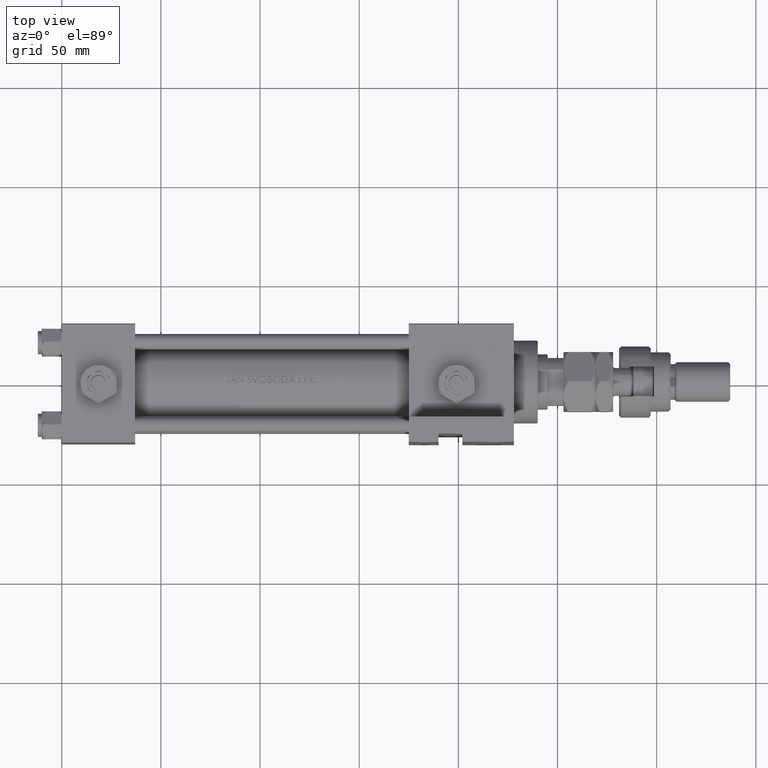
[diagram: clean part render]
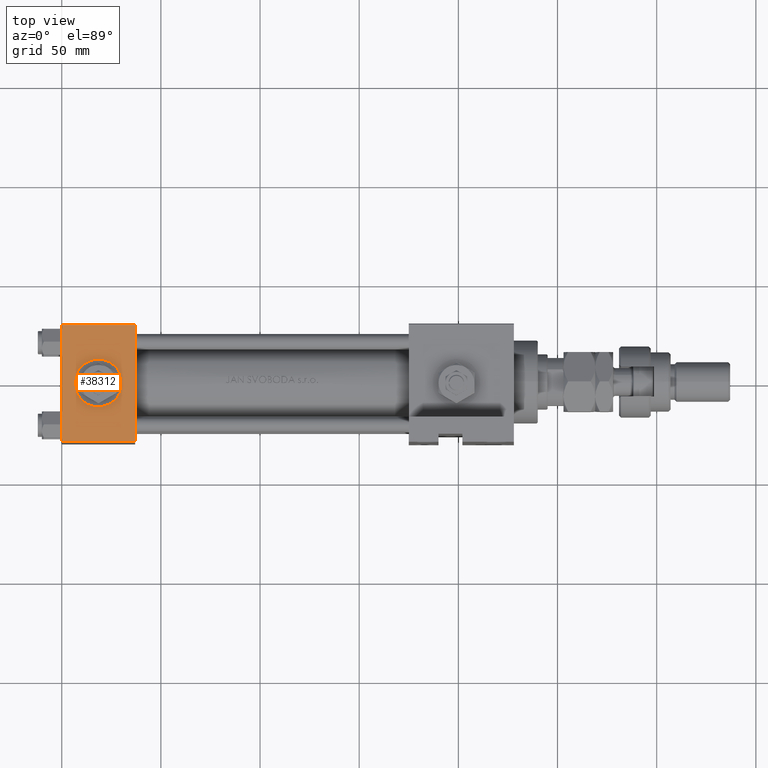
[diagram: same view with one face highlighted and labeled with its STEP entity id]
A machine part, top view. The second image highlights one B-rep face of the part: STEP entity #38312.
In plain terms, the highlighted planar face has unit normal (0, 0, -1).
Its self-contained STEP definition (entity closure, byte-faithful):
#76 = VERTEX_POINT ( 'NONE', #5356 ) ;
#706 = EDGE_LOOP ( 'NONE', ( #42004, #42087 ) ) ;
#775 = CARTESIAN_POINT ( 'NONE',  ( 0.000000000000000000, -30.00000000000000000, -29.50000000000001776 ) ) ;
#1599 = VERTEX_POINT ( 'NONE', #775 ) ;
#1901 = EDGE_CURVE ( 'NONE', #15721, #19459, #21573, .T. ) ;
#2802 = CARTESIAN_POINT ( 'NONE',  ( 37.00000000000000000, -30.00000000000000000, 29.49999999999999289 ) ) ;
#4775 = VECTOR ( 'NONE', #41413, 1000.000000000000000 ) ;
#5356 = CARTESIAN_POINT ( 'NONE',  ( 18.50000000000000000, -30.00000000000000000, -12.00000000000000178 ) ) ;
#5712 = FACE_OUTER_BOUND ( 'NONE', #18917, .T. ) ;
#5971 = ORIENTED_EDGE ( 'NONE', *, *, #18132, .T. ) ;
#6537 = AXIS2_PLACEMENT_3D ( 'NONE', #30926, #13850, #42857 ) ;
#13450 = CARTESIAN_POINT ( 'NONE',  ( 37.00000000000000000, -30.00000000000000000, 29.99999999999999289 ) ) ;
#13850 = DIRECTION ( 'NONE',  ( -0.000000000000000000, 1.000000000000000000, 0.000000000000000000 ) ) ;
#15721 = VERTEX_POINT ( 'NONE', #40972 ) ;
#17205 = VECTOR ( 'NONE', #32340, 1000.000000000000000 ) ;
#17362 = DIRECTION ( 'NONE',  ( 0.000000000000000000, 0.000000000000000000, -1.000000000000000000 ) ) ;
#18132 = EDGE_CURVE ( 'NONE', #15721, #49796, #48611, .T. ) ;
#18917 = EDGE_LOOP ( 'NONE', ( #37620, #39224, #24002, #5971 ) ) ;
#19459 = VERTEX_POINT ( 'NONE', #20326 ) ;
#19681 = EDGE_CURVE ( 'NONE', #49796, #1599, #28157, .T. ) ;
#20326 = CARTESIAN_POINT ( 'NONE',  ( 37.00000000000000000, -30.00000000000000000, -29.50000000000001776 ) ) ;
#21311 = EDGE_CURVE ( 'NONE', #1599, #19459, #36595, .T. ) ;
#21573 = LINE ( 'NONE', #13450, #17205 ) ;
#22027 = VECTOR ( 'NONE', #23920, 1000.000000000000000 ) ;
#23920 = DIRECTION ( 'NONE',  ( -1.000000000000000000, 0.000000000000000000, 0.000000000000000000 ) ) ;
#24002 = ORIENTED_EDGE ( 'NONE', *, *, #1901, .F. ) ;
#28157 = LINE ( 'NONE', #52839, #4775 ) ;
#28600 = DIRECTION ( 'NONE',  ( 0.000000000000000000, -1.000000000000000000, -8.673617379884036705E-17 ) ) ;
#28978 = DIRECTION ( 'NONE',  ( 1.000000000000000000, 0.000000000000000000, 0.000000000000000000 ) ) ;
#29122 = EDGE_CURVE ( 'NONE', #42214, #76, #37120, .T. ) ;
#29518 = CARTESIAN_POINT ( 'NONE',  ( 37.00000000000000000, -30.00000000000000000, -29.50000000000001776 ) ) ;
#30926 = CARTESIAN_POINT ( 'NONE',  ( 37.00000000000000000, -30.00000000000000000, 29.99999999999999289 ) ) ;
#31076 = CIRCLE ( 'NONE', #44030, 12.00000000000000178 ) ;
#32239 = EDGE_CURVE ( 'NONE', #76, #42214, #31076, .T. ) ;
#32340 = DIRECTION ( 'NONE',  ( 0.000000000000000000, 0.000000000000000000, -1.000000000000000000 ) ) ;
#36261 = AXIS2_PLACEMENT_3D ( 'NONE', #50450, #46912, #17362 ) ;
#36471 = DIRECTION ( 'NONE',  ( 0.000000000000000000, 0.000000000000000000, -1.000000000000000000 ) ) ;
#36595 = LINE ( 'NONE', #29518, #51612 ) ;
#37120 = CIRCLE ( 'NONE', #36261, 12.00000000000000178 ) ;
#37447 = CARTESIAN_POINT ( 'NONE',  ( 18.50000000000000000, -30.00000000000000000, 12.00000000000000178 ) ) ;
#37620 = ORIENTED_EDGE ( 'NONE', *, *, #19681, .T. ) ;
#38312 = ADVANCED_FACE ( 'NONE', ( #43398, #5712 ), #39066, .F. ) ;
#39066 = PLANE ( 'NONE',  #6537 ) ;
#39224 = ORIENTED_EDGE ( 'NONE', *, *, #21311, .T. ) ;
#40972 = CARTESIAN_POINT ( 'NONE',  ( 37.00000000000000000, -30.00000000000000000, 29.49999999999999289 ) ) ;
#41413 = DIRECTION ( 'NONE',  ( 0.000000000000000000, 0.000000000000000000, -1.000000000000000000 ) ) ;
#42004 = ORIENTED_EDGE ( 'NONE', *, *, #32239, .F. ) ;
#42087 = ORIENTED_EDGE ( 'NONE', *, *, #29122, .F. ) ;
#42214 = VERTEX_POINT ( 'NONE', #37447 ) ;
#42857 = DIRECTION ( 'NONE',  ( 0.000000000000000000, -0.000000000000000000, 1.000000000000000000 ) ) ;
#43398 = FACE_BOUND ( 'NONE', #706, .T. ) ;
#44030 = AXIS2_PLACEMENT_3D ( 'NONE', #45653, #28600, #36471 ) ;
#45653 = CARTESIAN_POINT ( 'NONE',  ( 18.50000000000000000, -30.00000000000000000, 0.000000000000000000 ) ) ;
#46883 = CARTESIAN_POINT ( 'NONE',  ( 0.000000000000000000, -30.00000000000000000, 29.49999999999999289 ) ) ;
#46912 = DIRECTION ( 'NONE',  ( 0.000000000000000000, -1.000000000000000000, -8.673617379884036705E-17 ) ) ;
#48611 = LINE ( 'NONE', #2802, #22027 ) ;
#49796 = VERTEX_POINT ( 'NONE', #46883 ) ;
#50450 = CARTESIAN_POINT ( 'NONE',  ( 18.50000000000000000, -30.00000000000000000, 0.000000000000000000 ) ) ;
#51612 = VECTOR ( 'NONE', #28978, 1000.000000000000000 ) ;
#52839 = CARTESIAN_POINT ( 'NONE',  ( 0.000000000000000000, -30.00000000000000000, 29.99999999999999289 ) ) ;